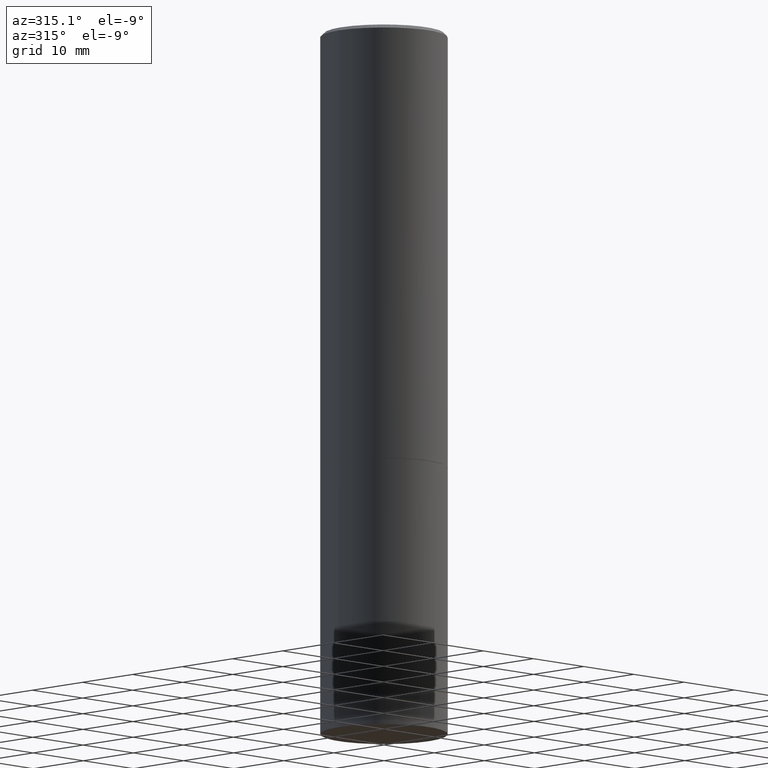
[diagram: clean part render]
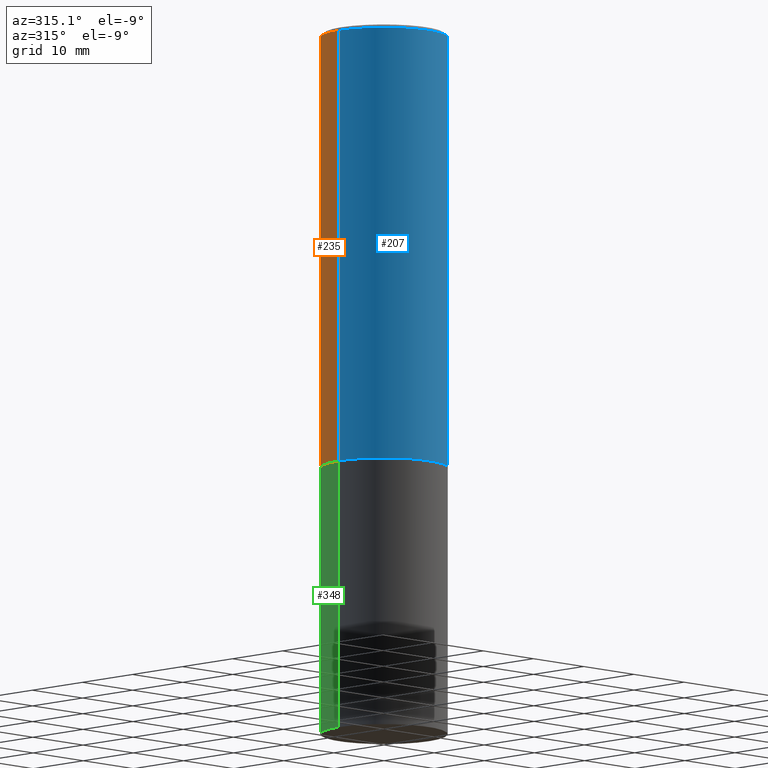
[diagram: same view with three faces highlighted in distinct colors, each labeled with its STEP entity id]
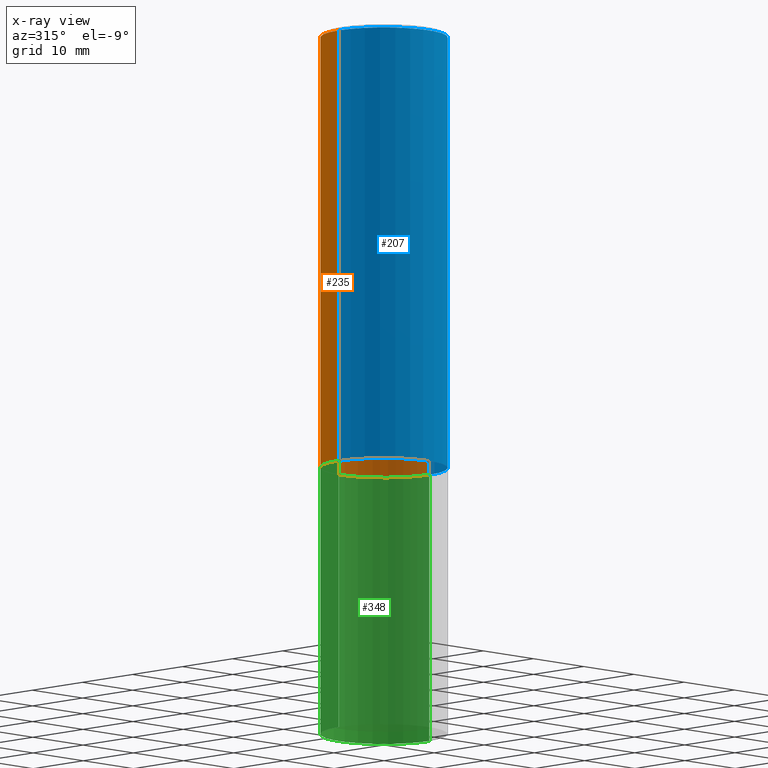
[diagram: x-ray of the same camera — body ghosted, the three highlighted faces saturated]
A machine part, auxiliary view with three faces highlighted in distinct colors.
The next image is the same camera in x-ray (body ghosted, the three faces saturated) — at least one of them is partly hidden behind the body in this view.
Their STEP definitions:

[orange] entity #235 — the highlighted cylindrical surface (partial cylindrical patch) has radius 9.0005 mm, axis along (-0, 0, 1).
#5 = EDGE_CURVE ( 'NONE', #325, #200, #67, .T. ) ;
#15 = EDGE_LOOP ( 'NONE', ( #302, #251, #103, #76 ) ) ;
#21 = CARTESIAN_POINT ( 'NONE',  ( 4.890937612370294178E-31, -6.982962677686321191E-17, -0.02000000000000008715 ) ) ;
#29 = VECTOR ( 'NONE', #88, 39.37007874015748143 ) ;
#63 = CARTESIAN_POINT ( 'NONE',  ( -0.3543499999999999983, -1.776539288544209660E-15, -2.439900000000000180 ) ) ;
#67 = LINE ( 'NONE', #230, #292 ) ;
#76 = ORIENTED_EDGE ( 'NONE', *, *, #5, .F. ) ;
#82 = CARTESIAN_POINT ( 'NONE',  ( 0.000000000000000000, 0.000000000000000000, 0.000000000000000000 ) ) ;
#87 = DIRECTION ( 'NONE',  ( -2.445468806185136877E-29, 3.491481338843145188E-15, 1.000000000000000000 ) ) ;
#88 = DIRECTION ( 'NONE',  ( -2.445468806185136877E-29, 3.491481338843145188E-15, 1.000000000000000000 ) ) ;
#93 = CARTESIAN_POINT ( 'NONE',  ( -0.3543499999999997208, 2.404583198061263424E-15, -0.02000000000000008715 ) ) ;
#96 = EDGE_CURVE ( 'NONE', #111, #146, #236, .T. ) ;
#103 = ORIENTED_EDGE ( 'NONE', *, *, #288, .F. ) ;
#107 = DIRECTION ( 'NONE',  ( -2.445468806185136597E-29, 3.491481338843145583E-15, 1.000000000000000000 ) ) ;
#111 = VERTEX_POINT ( 'NONE', #63 ) ;
#140 = CIRCLE ( 'NONE', #320, 0.3543499999999999983 ) ;
#146 = VERTEX_POINT ( 'NONE', #93 ) ;
#156 = EDGE_CURVE ( 'NONE', #325, #111, #140, .T. ) ;
#172 = DIRECTION ( 'NONE',  ( -2.445468806185136597E-29, 3.491481338843145583E-15, 1.000000000000000000 ) ) ;
#184 = DIRECTION ( 'NONE',  ( -2.445468806185136597E-29, 3.491481338843145583E-15, 1.000000000000000000 ) ) ;
#188 = CARTESIAN_POINT ( 'NONE',  ( 0.3543499999999999983, -1.099327814348151984E-14, -2.439900000000000180 ) ) ;
#191 = CYLINDRICAL_SURFACE ( 'NONE', #321, 0.3543499999999998873 ) ;
#195 = FACE_OUTER_BOUND ( 'NONE', #15, .T. ) ;
#197 = CARTESIAN_POINT ( 'NONE',  ( 5.966699340211115678E-29, -8.518865318643391536E-15, -2.439900000000000180 ) ) ;
#200 = VERTEX_POINT ( 'NONE', #228 ) ;
#228 = CARTESIAN_POINT ( 'NONE',  ( 0.3543499999999997208, -2.500847092287203718E-15, -0.02000000000000008715 ) ) ;
#230 = CARTESIAN_POINT ( 'NONE',  ( 0.3543499999999998873, -2.474412824838127905E-15, 1.727873240503289188E-29 ) ) ;
#235 = ADVANCED_FACE ( 'NONE', ( #195 ), #191, .T. ) ;
#236 = LINE ( 'NONE', #339, #29 ) ;
#244 = CIRCLE ( 'NONE', #275, 0.3543499999999997208 ) ;
#251 = ORIENTED_EDGE ( 'NONE', *, *, #96, .T. ) ;
#275 = AXIS2_PLACEMENT_3D ( 'NONE', #21, #172, #282 ) ;
#282 = DIRECTION ( 'NONE',  ( 1.000000000000000000, -6.982962677686266711E-15, 0.000000000000000000 ) ) ;
#288 = EDGE_CURVE ( 'NONE', #200, #146, #244, .T. ) ;
#292 = VECTOR ( 'NONE', #87, 39.37007874015748143 ) ;
#294 = DIRECTION ( 'NONE',  ( 1.000000000000000000, -6.982962677686268288E-15, 0.000000000000000000 ) ) ;
#302 = ORIENTED_EDGE ( 'NONE', *, *, #156, .T. ) ;
#320 = AXIS2_PLACEMENT_3D ( 'NONE', #197, #184, #294 ) ;
#321 = AXIS2_PLACEMENT_3D ( 'NONE', #82, #107, #357 ) ;
#325 = VERTEX_POINT ( 'NONE', #188 ) ;
#339 = CARTESIAN_POINT ( 'NONE',  ( -0.3543499999999998873, 2.517808184165914208E-15, -1.743024649231825225E-29 ) ) ;
#357 = DIRECTION ( 'NONE',  ( 1.000000000000000000, -6.982962677686266711E-15, 4.876176775795935232E-29 ) ) ;

[blue] entity #207 — the highlighted cylindrical surface (partial cylindrical patch) has radius 9.0005 mm, axis along (-0, 0, 1).
#5 = EDGE_CURVE ( 'NONE', #325, #200, #67, .T. ) ;
#7 = CARTESIAN_POINT ( 'NONE',  ( 5.966699340211115678E-29, -8.518865318643391536E-15, -2.439900000000000180 ) ) ;
#8 = CARTESIAN_POINT ( 'NONE',  ( 4.890937612370294178E-31, -6.982962677686321191E-17, -0.02000000000000008715 ) ) ;
#13 = AXIS2_PLACEMENT_3D ( 'NONE', #138, #135, #229 ) ;
#18 = ORIENTED_EDGE ( 'NONE', *, *, #352, .T. ) ;
#29 = VECTOR ( 'NONE', #88, 39.37007874015748143 ) ;
#32 = CYLINDRICAL_SURFACE ( 'NONE', #13, 0.3543499999999998873 ) ;
#63 = CARTESIAN_POINT ( 'NONE',  ( -0.3543499999999999983, -1.776539288544209660E-15, -2.439900000000000180 ) ) ;
#64 = AXIS2_PLACEMENT_3D ( 'NONE', #7, #289, #234 ) ;
#67 = LINE ( 'NONE', #230, #292 ) ;
#87 = DIRECTION ( 'NONE',  ( -2.445468806185136877E-29, 3.491481338843145188E-15, 1.000000000000000000 ) ) ;
#88 = DIRECTION ( 'NONE',  ( -2.445468806185136877E-29, 3.491481338843145188E-15, 1.000000000000000000 ) ) ;
#93 = CARTESIAN_POINT ( 'NONE',  ( -0.3543499999999997208, 2.404583198061263424E-15, -0.02000000000000008715 ) ) ;
#96 = EDGE_CURVE ( 'NONE', #111, #146, #236, .T. ) ;
#99 = DIRECTION ( 'NONE',  ( -2.445468806185136597E-29, 3.491481338843145583E-15, 1.000000000000000000 ) ) ;
#111 = VERTEX_POINT ( 'NONE', #63 ) ;
#121 = CIRCLE ( 'NONE', #343, 0.3543499999999997208 ) ;
#135 = DIRECTION ( 'NONE',  ( -2.445468806185136597E-29, 3.491481338843145583E-15, 1.000000000000000000 ) ) ;
#138 = CARTESIAN_POINT ( 'NONE',  ( 0.000000000000000000, 0.000000000000000000, 0.000000000000000000 ) ) ;
#146 = VERTEX_POINT ( 'NONE', #93 ) ;
#149 = ORIENTED_EDGE ( 'NONE', *, *, #158, .F. ) ;
#158 = EDGE_CURVE ( 'NONE', #146, #200, #121, .T. ) ;
#165 = ORIENTED_EDGE ( 'NONE', *, *, #96, .F. ) ;
#188 = CARTESIAN_POINT ( 'NONE',  ( 0.3543499999999999983, -1.099327814348151984E-14, -2.439900000000000180 ) ) ;
#200 = VERTEX_POINT ( 'NONE', #228 ) ;
#207 = ADVANCED_FACE ( 'NONE', ( #356 ), #32, .T. ) ;
#215 = DIRECTION ( 'NONE',  ( 1.000000000000000000, -6.982962677686266711E-15, 0.000000000000000000 ) ) ;
#228 = CARTESIAN_POINT ( 'NONE',  ( 0.3543499999999997208, -2.500847092287203718E-15, -0.02000000000000008715 ) ) ;
#229 = DIRECTION ( 'NONE',  ( 1.000000000000000000, -6.982962677686266711E-15, 4.876176775795935232E-29 ) ) ;
#230 = CARTESIAN_POINT ( 'NONE',  ( 0.3543499999999998873, -2.474412824838127905E-15, 1.727873240503289188E-29 ) ) ;
#234 = DIRECTION ( 'NONE',  ( 1.000000000000000000, -6.982962677686268288E-15, 0.000000000000000000 ) ) ;
#236 = LINE ( 'NONE', #339, #29 ) ;
#276 = ORIENTED_EDGE ( 'NONE', *, *, #5, .T. ) ;
#289 = DIRECTION ( 'NONE',  ( -2.445468806185136597E-29, 3.491481338843145583E-15, 1.000000000000000000 ) ) ;
#292 = VECTOR ( 'NONE', #87, 39.37007874015748143 ) ;
#325 = VERTEX_POINT ( 'NONE', #188 ) ;
#338 = EDGE_LOOP ( 'NONE', ( #165, #18, #276, #149 ) ) ;
#339 = CARTESIAN_POINT ( 'NONE',  ( -0.3543499999999998873, 2.517808184165914208E-15, -1.743024649231825225E-29 ) ) ;
#343 = AXIS2_PLACEMENT_3D ( 'NONE', #8, #99, #215 ) ;
#344 = CIRCLE ( 'NONE', #64, 0.3543499999999999983 ) ;
#352 = EDGE_CURVE ( 'NONE', #111, #325, #344, .T. ) ;
#356 = FACE_OUTER_BOUND ( 'NONE', #338, .T. ) ;

[green] entity #348 — the highlighted cylindrical surface (partial cylindrical patch) has radius 9.0005 mm, axis along (-0, 0, 1).
#3 = CYLINDRICAL_SURFACE ( 'NONE', #102, 0.3543499999999999983 ) ;
#4 = CARTESIAN_POINT ( 'NONE',  ( 0.3543499999999999983, -2.474412824838128694E-15, 1.727873240503289749E-29 ) ) ;
#20 = EDGE_CURVE ( 'NONE', #24, #261, #68, .T. ) ;
#24 = VERTEX_POINT ( 'NONE', #142 ) ;
#25 = DIRECTION ( 'NONE',  ( -2.445468806185136597E-29, 3.491481338843145583E-15, 1.000000000000000000 ) ) ;
#44 = EDGE_CURVE ( 'NONE', #299, #261, #253, .T. ) ;
#58 = CARTESIAN_POINT ( 'NONE',  ( -0.3543499999999999983, -8.616351231337934377E-15, -2.440900000000000070 ) ) ;
#68 = CIRCLE ( 'NONE', #273, 0.3543499999999999983 ) ;
#74 = VECTOR ( 'NONE', #123, 39.37007874015748143 ) ;
#77 = CARTESIAN_POINT ( 'NONE',  ( -0.3543499999999999983, -8.616351231337934377E-15, -3.937000000000000277 ) ) ;
#85 = CIRCLE ( 'NONE', #182, 0.3543499999999999983 ) ;
#102 = AXIS2_PLACEMENT_3D ( 'NONE', #122, #291, #154 ) ;
#108 = VECTOR ( 'NONE', #361, 39.37007874015748143 ) ;
#122 = CARTESIAN_POINT ( 'NONE',  ( 0.000000000000000000, 0.000000000000000000, 0.000000000000000000 ) ) ;
#123 = DIRECTION ( 'NONE',  ( -2.445468806185136877E-29, 3.491481338843145188E-15, 1.000000000000000000 ) ) ;
#134 = VERTEX_POINT ( 'NONE', #198 ) ;
#142 = CARTESIAN_POINT ( 'NONE',  ( 0.3543499999999999983, -1.099676962482036284E-14, -2.440900000000000070 ) ) ;
#154 = DIRECTION ( 'NONE',  ( 1.000000000000000000, -6.982962677686266711E-15, 4.876176775795935793E-29 ) ) ;
#168 = ORIENTED_EDGE ( 'NONE', *, *, #20, .F. ) ;
#170 = DIRECTION ( 'NONE',  ( 1.000000000000000000, -6.982962677686265922E-15, 0.000000000000000000 ) ) ;
#171 = EDGE_CURVE ( 'NONE', #134, #24, #263, .T. ) ;
#180 = FACE_OUTER_BOUND ( 'NONE', #249, .T. ) ;
#182 = AXIS2_PLACEMENT_3D ( 'NONE', #199, #25, #170 ) ;
#198 = CARTESIAN_POINT ( 'NONE',  ( 0.3543499999999999983, -1.622037485586359329E-14, -3.937000000000000277 ) ) ;
#199 = CARTESIAN_POINT ( 'NONE',  ( 9.627810689950883669E-29, -1.374596203102546341E-14, -3.937000000000000277 ) ) ;
#203 = CARTESIAN_POINT ( 'NONE',  ( -0.3543499999999999983, 2.517808184165914997E-15, -1.743024649231826066E-29 ) ) ;
#206 = CARTESIAN_POINT ( 'NONE',  ( 5.969144809017300159E-29, -8.522356799982234543E-15, -2.440900000000000070 ) ) ;
#246 = ORIENTED_EDGE ( 'NONE', *, *, #171, .F. ) ;
#249 = EDGE_LOOP ( 'NONE', ( #252, #279, #168, #246 ) ) ;
#252 = ORIENTED_EDGE ( 'NONE', *, *, #272, .T. ) ;
#253 = LINE ( 'NONE', #203, #108 ) ;
#261 = VERTEX_POINT ( 'NONE', #58 ) ;
#263 = LINE ( 'NONE', #4, #74 ) ;
#272 = EDGE_CURVE ( 'NONE', #134, #299, #85, .T. ) ;
#273 = AXIS2_PLACEMENT_3D ( 'NONE', #206, #311, #316 ) ;
#279 = ORIENTED_EDGE ( 'NONE', *, *, #44, .T. ) ;
#291 = DIRECTION ( 'NONE',  ( -2.445468806185136597E-29, 3.491481338843145583E-15, 1.000000000000000000 ) ) ;
#299 = VERTEX_POINT ( 'NONE', #77 ) ;
#311 = DIRECTION ( 'NONE',  ( -2.445468806185136597E-29, 3.491481338843145583E-15, 1.000000000000000000 ) ) ;
#316 = DIRECTION ( 'NONE',  ( 1.000000000000000000, -6.982962677686265922E-15, 0.000000000000000000 ) ) ;
#348 = ADVANCED_FACE ( 'NONE', ( #180 ), #3, .T. ) ;
#361 = DIRECTION ( 'NONE',  ( -2.445468806185136877E-29, 3.491481338843145188E-15, 1.000000000000000000 ) ) ;